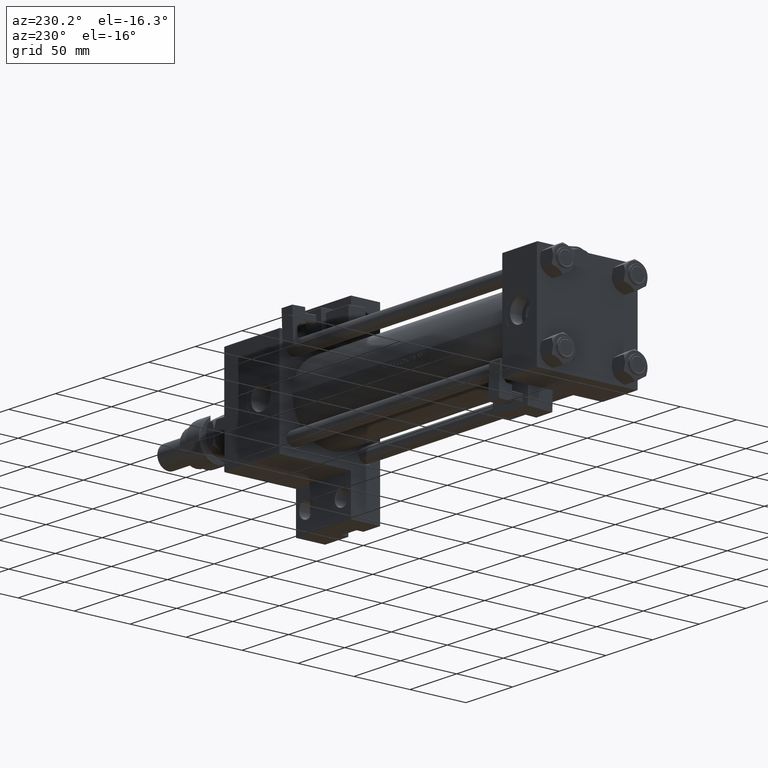
[diagram: clean part render]
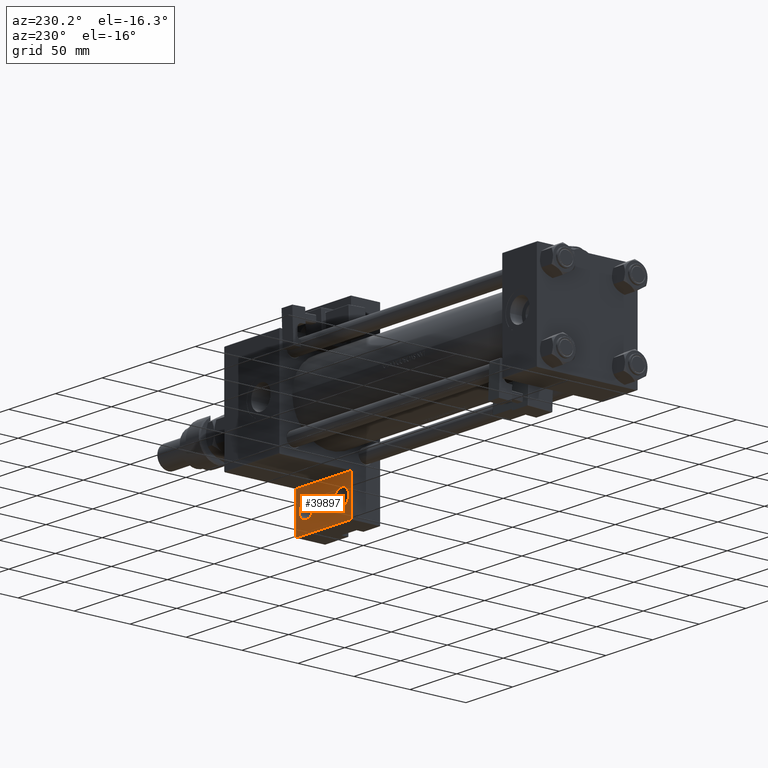
[diagram: same view with one face highlighted and labeled with its STEP entity id]
A machine part, auxiliary view. The second image highlights one B-rep face of the part: STEP entity #39897.
In plain terms, the highlighted planar face has unit normal (0, 1, 0).
Its self-contained STEP definition (entity closure, byte-faithful):
#38 = CIRCLE ( 'NONE', #17727, 7.499500000000103306 ) ;
#147 = EDGE_CURVE ( 'NONE', #41878, #42032, #32942, .T. ) ;
#328 = CARTESIAN_POINT ( 'NONE',  ( 316.5004999999998745, 62.00000000000000000, -19.00000000000000000 ) ) ;
#764 = DIRECTION ( 'NONE',  ( -0.000000000000000000, -0.000000000000000000, -1.000000000000000000 ) ) ;
#1418 = VERTEX_POINT ( 'NONE', #49767 ) ;
#1625 = ORIENTED_EDGE ( 'NONE', *, *, #44866, .F. ) ;
#1675 = AXIS2_PLACEMENT_3D ( 'NONE', #50961, #43479, #13046 ) ;
#2883 = CIRCLE ( 'NONE', #50632, 7.499500000000103306 ) ;
#2968 = LINE ( 'NONE', #49765, #34433 ) ;
#3711 = DIRECTION ( 'NONE',  ( -0.000000000000000000, -0.000000000000000000, -1.000000000000000000 ) ) ;
#4177 = VERTEX_POINT ( 'NONE', #12544 ) ;
#7335 = LINE ( 'NONE', #40558, #20088 ) ;
#7500 = ORIENTED_EDGE ( 'NONE', *, *, #25975, .F. ) ;
#7849 = EDGE_LOOP ( 'NONE', ( #10637, #35044 ) ) ;
#8577 = DIRECTION ( 'NONE',  ( 1.000000000000000000, 0.000000000000000000, 0.000000000000000000 ) ) ;
#10637 = ORIENTED_EDGE ( 'NONE', *, *, #25551, .T. ) ;
#10971 = FACE_OUTER_BOUND ( 'NONE', #42196, .T. ) ;
#12544 = CARTESIAN_POINT ( 'NONE',  ( 275.9999999999999432, 45.00000000000001421, -18.99999999999997513 ) ) ;
#13046 = DIRECTION ( 'NONE',  ( 1.000000000000000000, 0.000000000000000000, 0.000000000000000000 ) ) ;
#13903 = ORIENTED_EDGE ( 'NONE', *, *, #39533, .F. ) ;
#15298 = ORIENTED_EDGE ( 'NONE', *, *, #31803, .T. ) ;
#15571 = ORIENTED_EDGE ( 'NONE', *, *, #50589, .T. ) ;
#16625 = CIRCLE ( 'NONE', #53747, 7.499500000000103306 ) ;
#17727 = AXIS2_PLACEMENT_3D ( 'NONE', #47828, #764, #34290 ) ;
#20088 = VECTOR ( 'NONE', #36972, 1000.000000000000000 ) ;
#22915 = PLANE ( 'NONE',  #23256 ) ;
#23256 = AXIS2_PLACEMENT_3D ( 'NONE', #44478, #36486, #39790 ) ;
#23756 = FACE_BOUND ( 'NONE', #7849, .T. ) ;
#25061 = VECTOR ( 'NONE', #44687, 1000.000000000000000 ) ;
#25551 = EDGE_CURVE ( 'NONE', #40637, #1418, #50317, .T. ) ;
#25777 = CARTESIAN_POINT ( 'NONE',  ( 323.9999999999999432, 62.00000000000000000, -19.00000000000000000 ) ) ;
#25975 = EDGE_CURVE ( 'NONE', #4177, #41878, #2968, .T. ) ;
#27618 = FACE_BOUND ( 'NONE', #49482, .T. ) ;
#27824 = LINE ( 'NONE', #44405, #25061 ) ;
#28450 = CARTESIAN_POINT ( 'NONE',  ( 331.4995000000000687, 62.00000000000000000, -19.00000000000000000 ) ) ;
#29302 = CARTESIAN_POINT ( 'NONE',  ( 334.9999999999999432, 79.99999999999998579, -19.00000000000000000 ) ) ;
#29382 = DIRECTION ( 'NONE',  ( -0.000000000000000000, -0.000000000000000000, -1.000000000000000000 ) ) ;
#31803 = EDGE_CURVE ( 'NONE', #37891, #35629, #38, .T. ) ;
#32352 = CARTESIAN_POINT ( 'NONE',  ( 275.9999999999999432, 79.99999999999995737, -19.00000000000000000 ) ) ;
#32942 = LINE ( 'NONE', #53131, #51091 ) ;
#34290 = DIRECTION ( 'NONE',  ( 1.000000000000000000, 0.000000000000000000, 0.000000000000000000 ) ) ;
#34433 = VECTOR ( 'NONE', #41186, 1000.000000000000000 ) ;
#35044 = ORIENTED_EDGE ( 'NONE', *, *, #36100, .T. ) ;
#35462 = CARTESIAN_POINT ( 'NONE',  ( 293.4995000000000687, 62.00000000000002842, -19.00000000000000000 ) ) ;
#35629 = VERTEX_POINT ( 'NONE', #28450 ) ;
#36100 = EDGE_CURVE ( 'NONE', #1418, #40637, #2883, .T. ) ;
#36486 = DIRECTION ( 'NONE',  ( 0.000000000000000000, 0.000000000000000000, 1.000000000000000000 ) ) ;
#36972 = DIRECTION ( 'NONE',  ( -1.000000000000000000, 1.411300455031978640E-15, -0.000000000000000000 ) ) ;
#37425 = CARTESIAN_POINT ( 'NONE',  ( 334.9999999999999432, 44.99999999999992895, -19.00000000000000000 ) ) ;
#37891 = VERTEX_POINT ( 'NONE', #328 ) ;
#39533 = EDGE_CURVE ( 'NONE', #42032, #51480, #27824, .T. ) ;
#39790 = DIRECTION ( 'NONE',  ( 1.000000000000000000, 0.000000000000000000, -0.000000000000000000 ) ) ;
#39897 = ADVANCED_FACE ( 'NONE', ( #27618, #23756, #10971 ), #22915, .T. ) ;
#40558 = CARTESIAN_POINT ( 'NONE',  ( 275.9999999999999432, 45.00000000000001421, -19.00000000000000000 ) ) ;
#40637 = VERTEX_POINT ( 'NONE', #35462 ) ;
#41186 = DIRECTION ( 'NONE',  ( -0.000000000000000000, 1.000000000000000000, -0.000000000000000000 ) ) ;
#41376 = CARTESIAN_POINT ( 'NONE',  ( 286.0000000000000000, 62.00000000000002842, -19.00000000000000000 ) ) ;
#41878 = VERTEX_POINT ( 'NONE', #32352 ) ;
#42032 = VERTEX_POINT ( 'NONE', #29302 ) ;
#42196 = EDGE_LOOP ( 'NONE', ( #7500, #1625, #13903, #44622 ) ) ;
#43479 = DIRECTION ( 'NONE',  ( -0.000000000000000000, -0.000000000000000000, -1.000000000000000000 ) ) ;
#44405 = CARTESIAN_POINT ( 'NONE',  ( 334.9999999999999432, 79.99999999999998579, -19.00000000000000000 ) ) ;
#44478 = CARTESIAN_POINT ( 'NONE',  ( 0.000000000000000000, 0.000000000000000000, -19.00000000000000000 ) ) ;
#44622 = ORIENTED_EDGE ( 'NONE', *, *, #147, .F. ) ;
#44687 = DIRECTION ( 'NONE',  ( 0.000000000000000000, -1.000000000000000000, 0.000000000000000000 ) ) ;
#44866 = EDGE_CURVE ( 'NONE', #51480, #4177, #7335, .T. ) ;
#47828 = CARTESIAN_POINT ( 'NONE',  ( 323.9999999999999432, 62.00000000000000000, -19.00000000000000000 ) ) ;
#49482 = EDGE_LOOP ( 'NONE', ( #15571, #15298 ) ) ;
#49765 = CARTESIAN_POINT ( 'NONE',  ( 275.9999999999999432, 79.99999999999995737, -19.00000000000000000 ) ) ;
#49767 = CARTESIAN_POINT ( 'NONE',  ( 278.5004999999998745, 62.00000000000002842, -19.00000000000000000 ) ) ;
#50317 = CIRCLE ( 'NONE', #1675, 7.499500000000103306 ) ;
#50589 = EDGE_CURVE ( 'NONE', #35629, #37891, #16625, .T. ) ;
#50632 = AXIS2_PLACEMENT_3D ( 'NONE', #41376, #3711, #54374 ) ;
#50961 = CARTESIAN_POINT ( 'NONE',  ( 286.0000000000000000, 62.00000000000002842, -19.00000000000000000 ) ) ;
#51091 = VECTOR ( 'NONE', #53686, 1000.000000000000000 ) ;
#51480 = VERTEX_POINT ( 'NONE', #37425 ) ;
#53131 = CARTESIAN_POINT ( 'NONE',  ( 275.9999999999999432, 79.99999999999995737, -19.00000000000000000 ) ) ;
#53686 = DIRECTION ( 'NONE',  ( 1.000000000000000000, 4.704334850106595794E-16, 0.000000000000000000 ) ) ;
#53747 = AXIS2_PLACEMENT_3D ( 'NONE', #25777, #29382, #8577 ) ;
#54374 = DIRECTION ( 'NONE',  ( 1.000000000000000000, 0.000000000000000000, 0.000000000000000000 ) ) ;